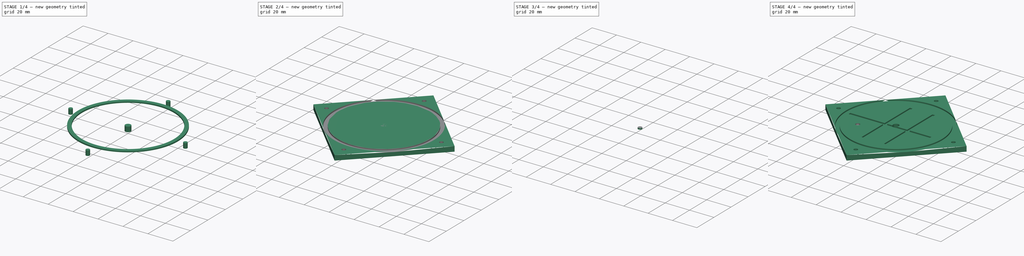
[diagram: build sequence overview — one tinted view per stage of 4, left to right]
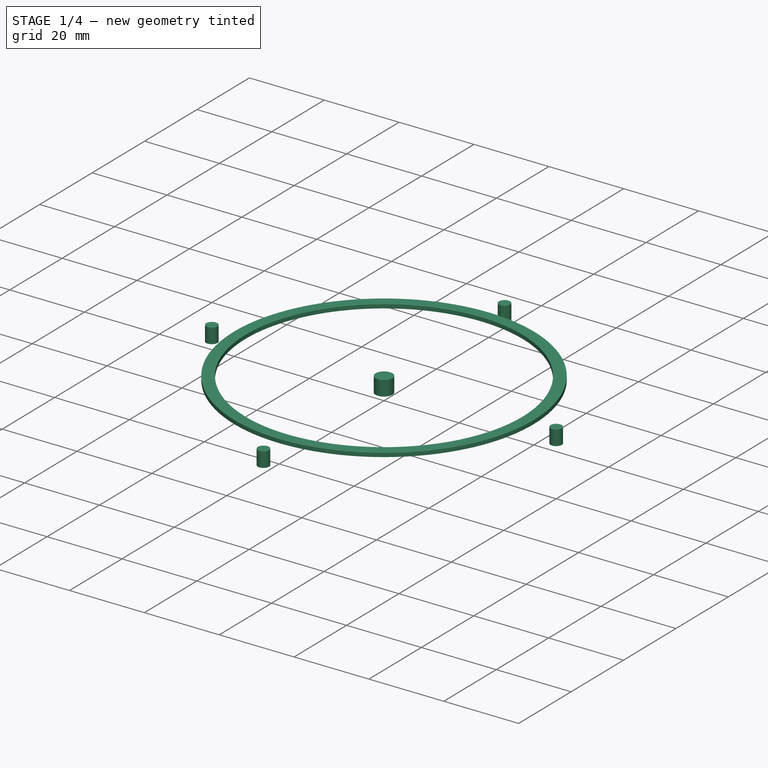
[diagram: stage 1 of 4 — iso view after this stage's code; geometry added in this stage tinted green]
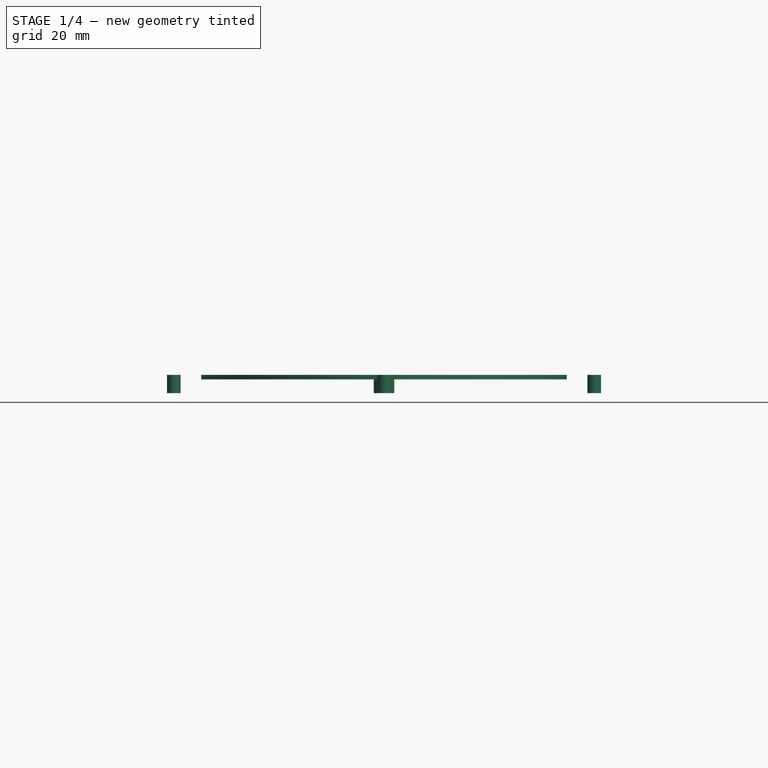
[diagram: stage 1 of 4 — front view after this stage's code; geometry added in this stage tinted green]
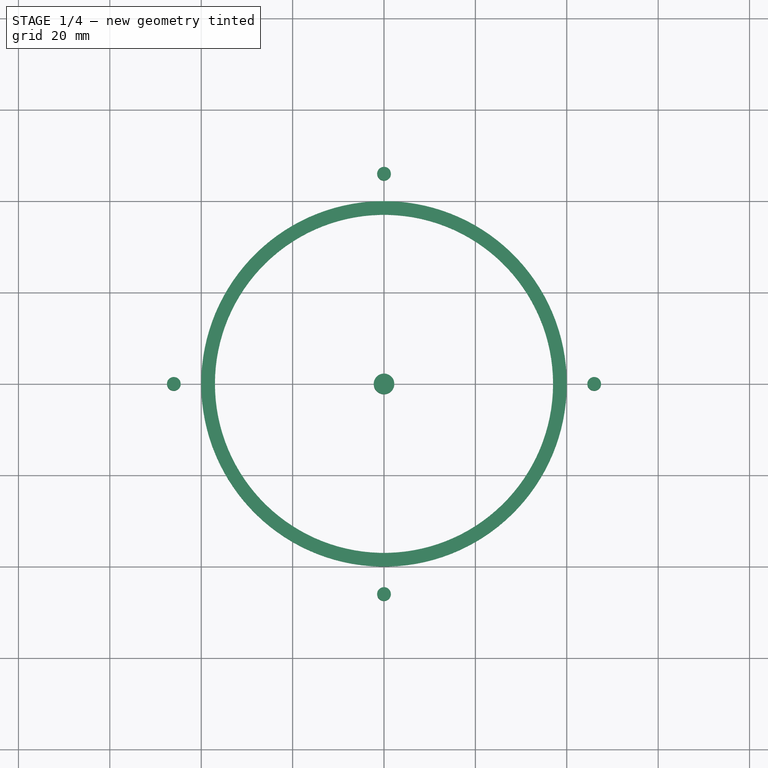
[diagram: stage 1 of 4 — top view after this stage's code; geometry added in this stage tinted green]
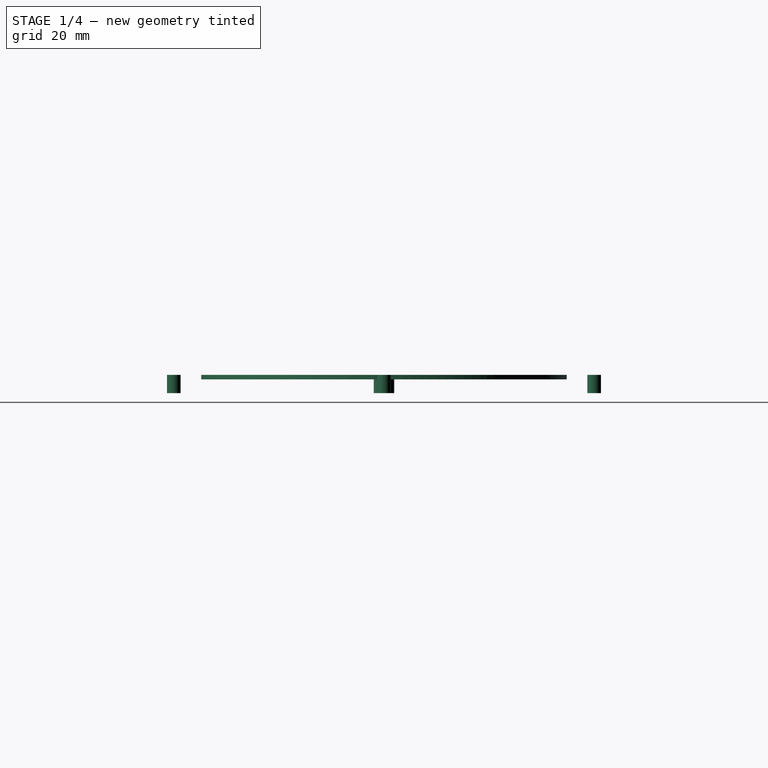
[diagram: stage 1 of 4 — right view after this stage's code; geometry added in this stage tinted green]
FCSTD DOCUMENT  (FreeCAD 0.14R3700 (Git))
Label: BIRR_socle
License: CC-BY 3.0
LicenseURL: http://creativecommons.org/licenses/by/3.0/
objects: Sketcher::SketchObject×6, Part::Extrusion×6, Part::Cut×5, Part::Feature×1
note: 18 computed .brp shape members not serialized (recipe doc carries the construction recipe); baked Part::Feature solids carry a one-line shape summary decoded from their .brp

FEATURE [Sketcher::SketchObject] Sketch001  label="RainureTube"
  Placement = pos=(0,0,4) rot=(0,0,1;0rad)
  sketch-geometry (2):
    g0: Circle CenterX=0 CenterY=0 CenterZ=0 NormalX=0 NormalY=0 NormalZ=1 Radius=40
    g1: Circle CenterX=0 CenterY=0 CenterZ=0 NormalX=0 NormalY=0 NormalZ=1 Radius=37
  constraints (4):
    c: Coincident(g0,g-1)
    c: Radius(g0) = 40
    c: Coincident(g1,g-1)
    c: Radius(g1) = 37
FEATURE [Part::Extrusion] Extrude001
  Base = -> Sketch001
  Dir = (0,0,-1)
  Solid = true
FEATURE [Sketcher::SketchObject] Sketch002  label="TrousFixationTube"
  sketch-geometry (4):
    g0: Circle CenterX=0 CenterY=-46 CenterZ=0 NormalX=0 NormalY=0 NormalZ=1 Radius=1.5
    g1: Circle CenterX=46 CenterY=0 CenterZ=0 NormalX=0 NormalY=0 NormalZ=1 Radius=1.5
    g2: Circle CenterX=0 CenterY=46 CenterZ=0 NormalX=0 NormalY=0 NormalZ=1 Radius=1.5
    g3: Circle CenterX=-46 CenterY=0 CenterZ=0 NormalX=0 NormalY=0 NormalZ=1 Radius=1.5
  constraints (10):
    c: Radius(g0) = 1.5
    c: Radius(g1) = 1.5
    c: Radius(g2) = 1.5
    c: Radius(g3) = 1.5
    c: PointOnObject(g0,g-2)
    c: PointOnObject(g1,g-1)
    c: Symmetric(g3,g1,g-2)
    c: Symmetric(g2,g0,g-1)
    c: DistanceX(g-1,g1) = 46
    c: DistanceY(g-1,g2) = 46
FEATURE [Part::Extrusion] Extrude002
  Base = -> Sketch002
  Dir = (0,0,4)
  Solid = true
FEATURE [Sketcher::SketchObject] Sketch003  label="AxeRotation"
  sketch-geometry (1):
    g0: Circle CenterX=0 CenterY=0 CenterZ=0 NormalX=0 NormalY=0 NormalZ=1 Radius=2.25
  constraints (2):
    c: Coincident(g0,g-1)
    c: Radius(g0) = 2.25
FEATURE [Part::Extrusion] Extrude003
  Base = -> Sketch003
  Dir = (0,0,4)
  Solid = true
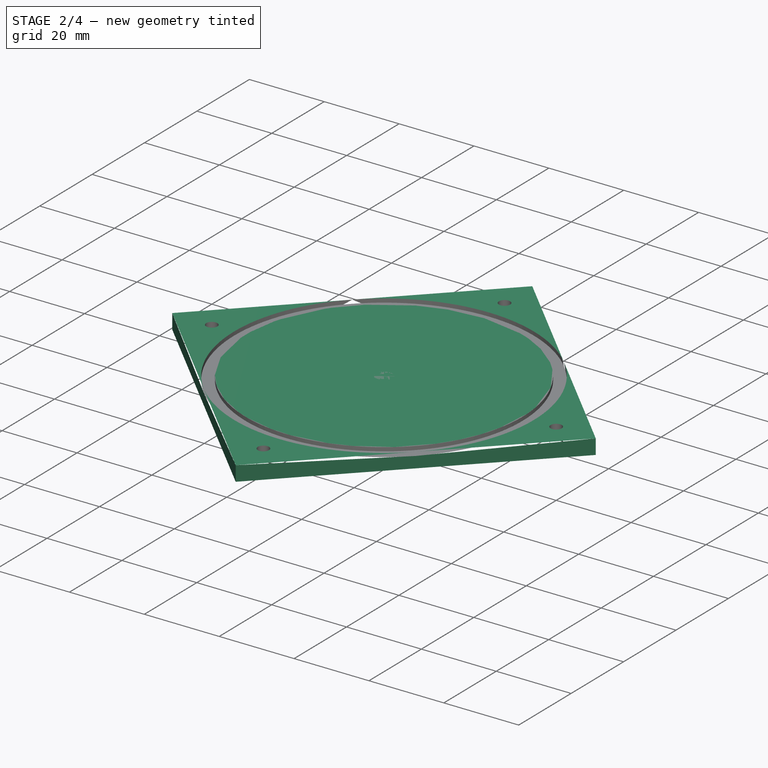
[diagram: stage 2 of 4 — iso view after this stage's code; geometry added in this stage tinted green]
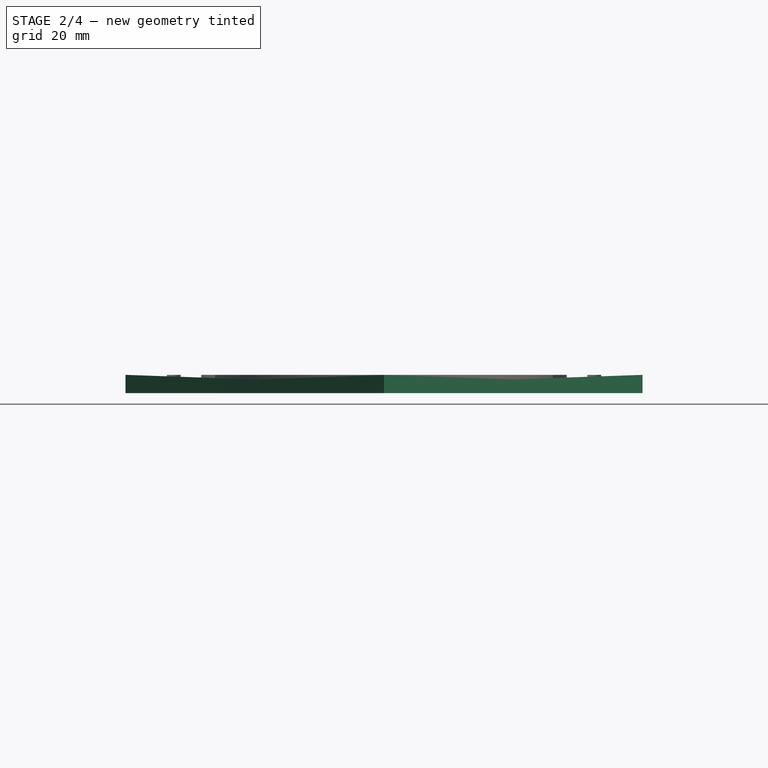
[diagram: stage 2 of 4 — front view after this stage's code; geometry added in this stage tinted green]
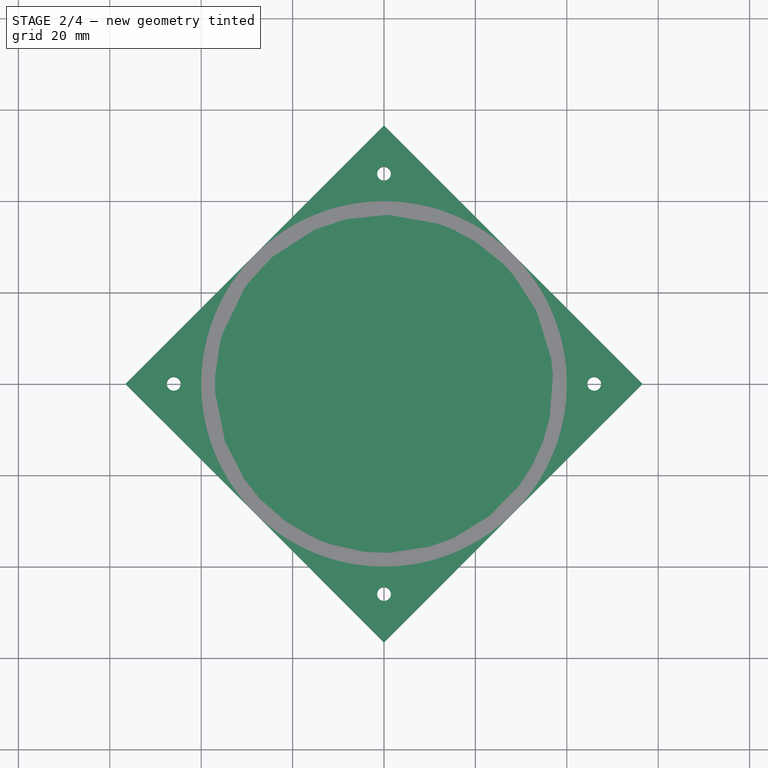
[diagram: stage 2 of 4 — top view after this stage's code; geometry added in this stage tinted green]
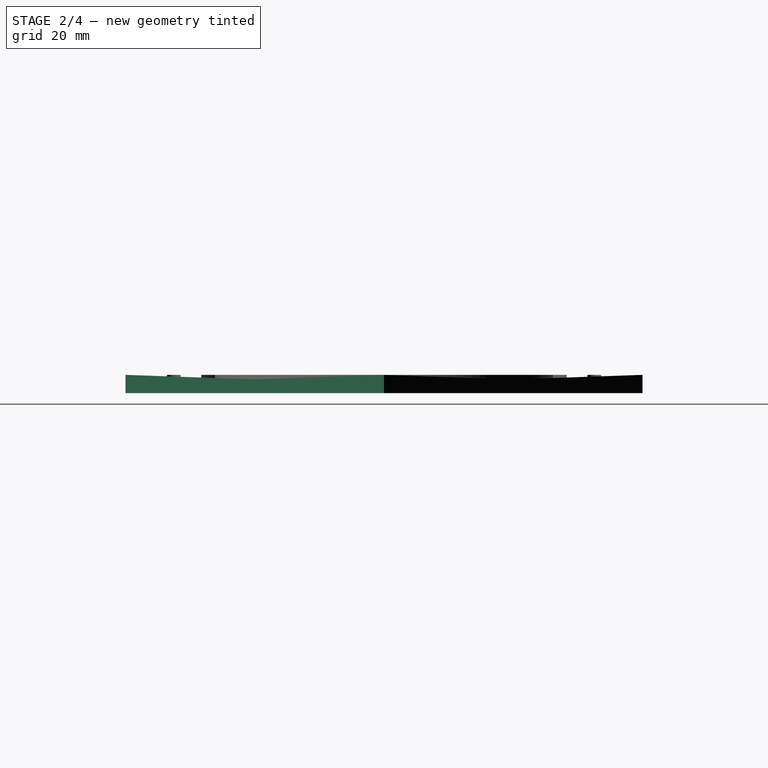
[diagram: stage 2 of 4 — right view after this stage's code; geometry added in this stage tinted green]
FEATURE [Sketcher::SketchObject] Sketch  label="Base"
  sketch-geometry (4):
    g0: LineSegment StartX=-56.5685 StartY=0 StartZ=0 EndX=0 EndY=56.5685 EndZ=0
    g1: LineSegment StartX=0 StartY=56.5685 StartZ=0 EndX=56.5685 EndY=0 EndZ=0
    g2: LineSegment StartX=56.5685 StartY=0 StartZ=0 EndX=0 EndY=-56.5685 EndZ=0
    g3: LineSegment StartX=0 StartY=-56.5685 StartZ=0 EndX=-56.5685 EndY=0 EndZ=0
  constraints (10):
    c: Coincident(g0,g1)
    c: Coincident(g1,g2)
    c: Coincident(g2,g3)
    c: Coincident(g3,g0)
    c: Symmetric(g0,g2,g-1)
    c: PointOnObject(g0,g-2)
    c: Symmetric(g1,g0,g-2)
    c: PointOnObject(g0,g-1)
    c: Distance(g0) = 80
    c: Perpendicular(g0,g3)
FEATURE [Part::Extrusion] Extrude
  Base = -> Sketch
  Dir = (0,0,4)
  Solid = true
FEATURE [Part::Cut] Cut
  Base = -> Extrude
  Tool = -> Extrude001
FEATURE [Part::Cut] Cut001
  Base = -> Cut
  Tool = -> Extrude002
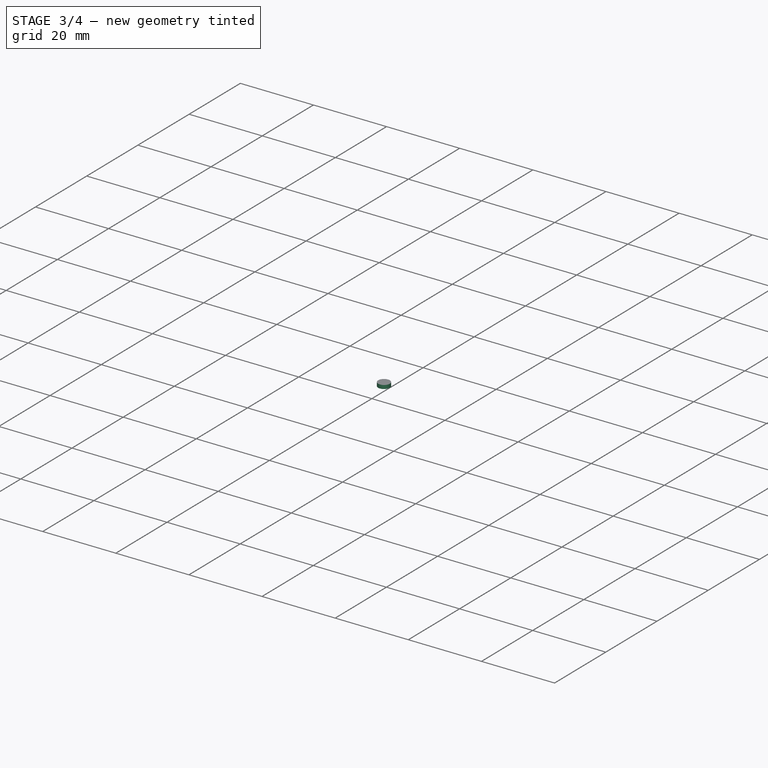
[diagram: stage 3 of 4 — iso view after this stage's code; geometry added in this stage tinted green]
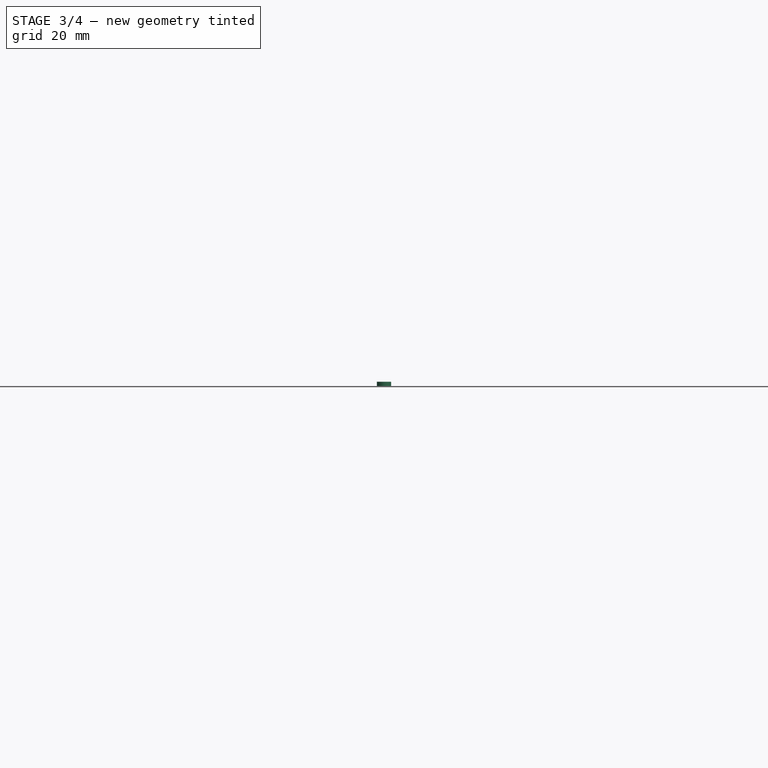
[diagram: stage 3 of 4 — front view after this stage's code; geometry added in this stage tinted green]
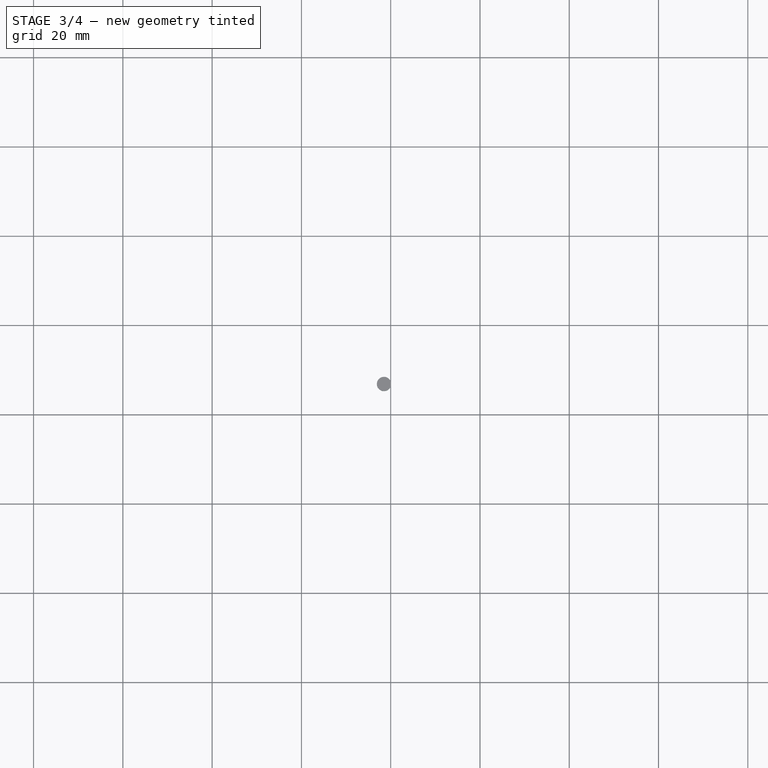
[diagram: stage 3 of 4 — top view after this stage's code; geometry added in this stage tinted green]
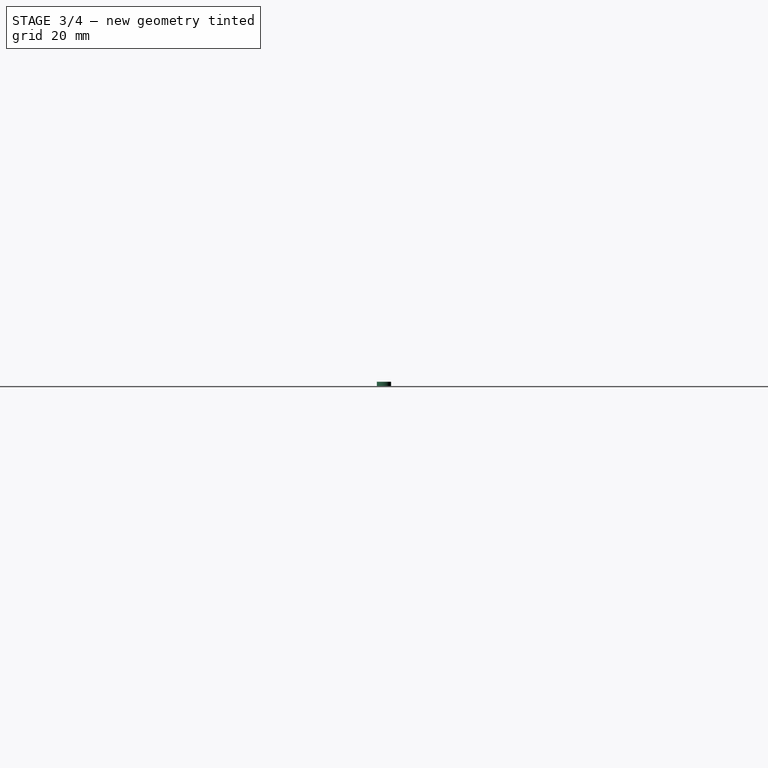
[diagram: stage 3 of 4 — right view after this stage's code; geometry added in this stage tinted green]
FEATURE [Part::Cut] Cut002
  Base = -> Cut001
  Tool = -> Extrude003
FEATURE [Sketcher::SketchObject] Sketch005  label="trouAxeEntrainement"
  Placement = pos=(0,0,4) rot=(0,0,1;0rad)
  Support = -> Cut002 [Face18]
  sketch-geometry (1):
    g0: Circle CenterX=-21.5 CenterY=-13.1 CenterZ=0 NormalX=0 NormalY=0 NormalZ=1 Radius=1.6
  constraints (3):
    c: Radius(g0) = 1.6
    c: DistanceX(g-1,g0) = -21.5
    c: DistanceY(g-1,g0) = -13.1
FEATURE [Part::Extrusion] Extrude005
  Base = -> Sketch005
  Dir = (0,0,-1)
  Solid = true
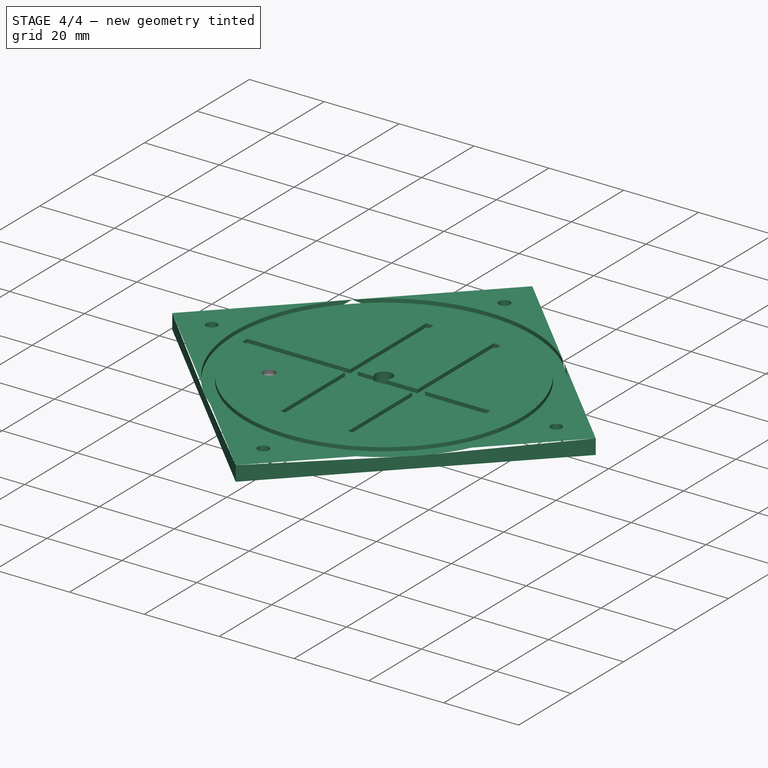
[diagram: stage 4 of 4 — iso view after this stage's code; geometry added in this stage tinted green]
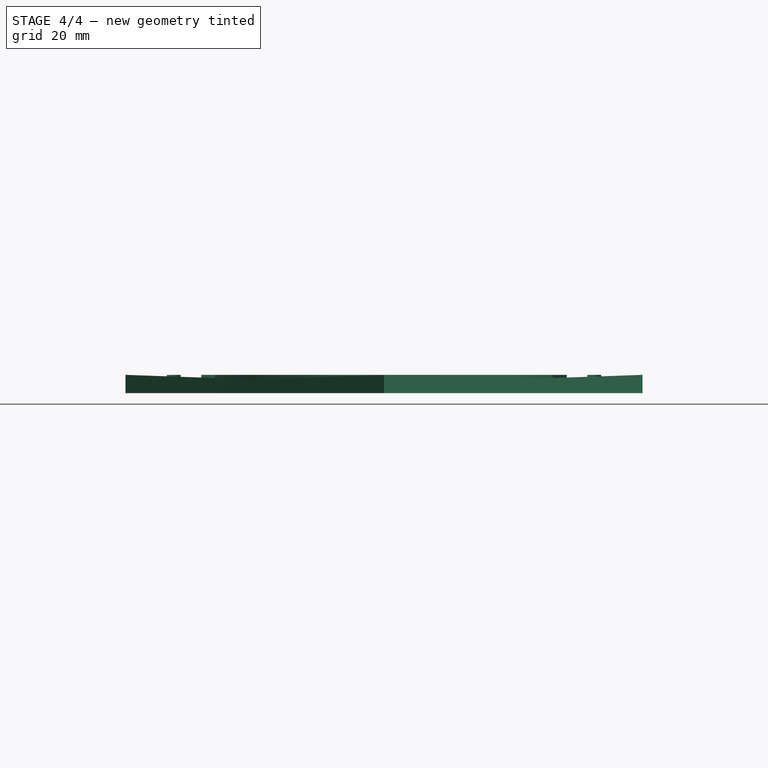
[diagram: stage 4 of 4 — front view after this stage's code; geometry added in this stage tinted green]
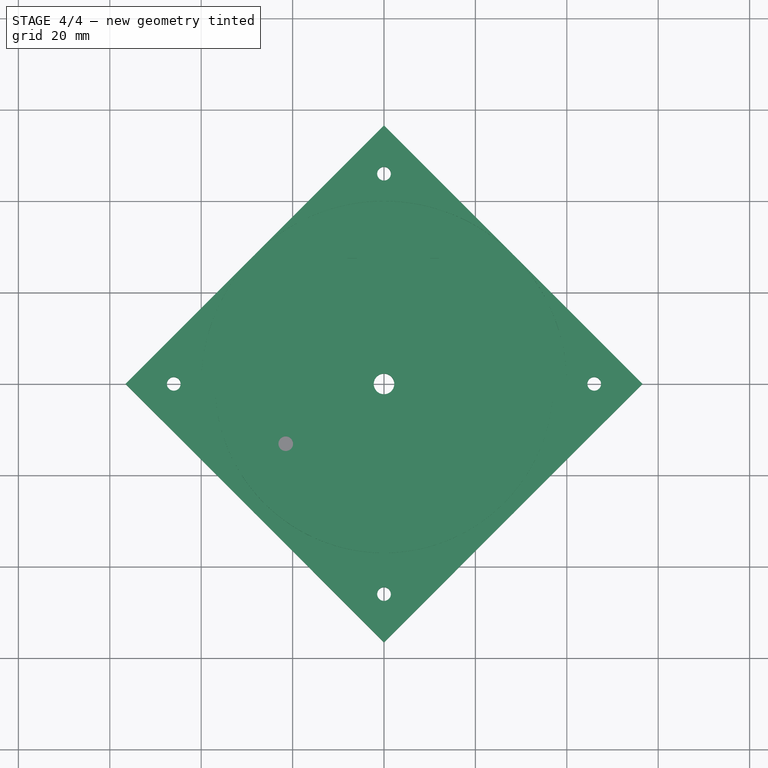
[diagram: stage 4 of 4 — top view after this stage's code; geometry added in this stage tinted green]
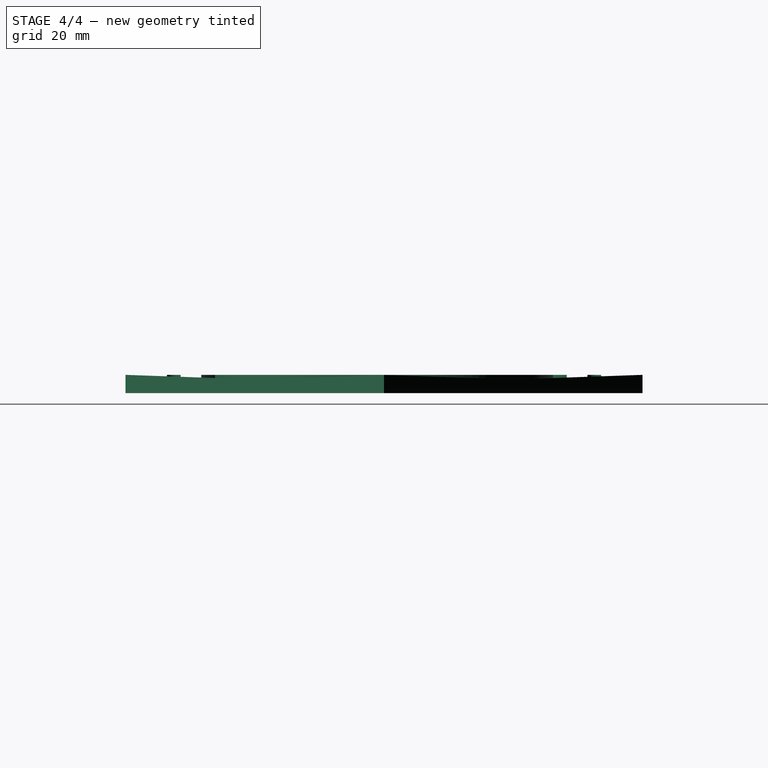
[diagram: stage 4 of 4 — right view after this stage's code; geometry added in this stage tinted green]
FEATURE [Sketcher::SketchObject] Sketch004  label="rainureFixMoteur"
  Placement = pos=(0,0,4) rot=(0,0,1;0rad)
  sketch-geometry (25):
    g0: GeomPoint [constr] X=-8 Y=-28 Z=0
    g1: GeomPoint [constr] X=-35.5 Y=-3.5 Z=0
    g2: GeomPoint [constr] X=12 Y=-28 Z=0
    g3: LineSegment StartX=12 StartY=-28 StartZ=0 EndX=10 EndY=-28 EndZ=0
    g4: LineSegment StartX=10 StartY=-28 StartZ=0 EndX=10 EndY=-3.5 EndZ=0
    g5: LineSegment StartX=10 StartY=-3.5 StartZ=0 EndX=-6 EndY=-3.5 EndZ=0
    g6: LineSegment StartX=-6 StartY=-3.5 StartZ=0 EndX=-6 EndY=-28 EndZ=0
    g7: LineSegment StartX=-6 StartY=-28 StartZ=0 EndX=-8 EndY=-28 EndZ=0
    g8: LineSegment StartX=-8 StartY=-28 StartZ=0 EndX=-8 EndY=-3.5 EndZ=0
    g9: LineSegment StartX=-8 StartY=-3.5 StartZ=0 EndX=-35.5 EndY=-3.5 EndZ=0
    g10: LineSegment StartX=-35.5 StartY=-3.5 StartZ=0 EndX=-35.5 EndY=-1.5 EndZ=0
    g11: LineSegment StartX=-35.5 StartY=-1.5 StartZ=0 EndX=-8 EndY=-1.5 EndZ=0
    g12: LineSegment StartX=-8 StartY=-1.5 StartZ=0 EndX=-8 EndY=27.5 EndZ=0
    g13: LineSegment StartX=-8 StartY=27.5 StartZ=0 EndX=-6 EndY=27.5 EndZ=0
    g14: LineSegment StartX=-6 StartY=27.5 StartZ=0 EndX=-6 EndY=-1.5 EndZ=0
    g15: LineSegment StartX=-6 StartY=-1.5 StartZ=0 EndX=10 EndY=-1.5 EndZ=0
    g16: LineSegment StartX=10 StartY=-1.5 StartZ=0 EndX=10 EndY=27.5 EndZ=0
    g17: LineSegment StartX=10 StartY=27.5 StartZ=0 EndX=12 EndY=27.5 EndZ=0
    g18: LineSegment StartX=12 StartY=27.5 StartZ=0 EndX=12 EndY=-1.5 EndZ=0
    g19: LineSegment StartX=12 StartY=-1.5 StartZ=0 EndX=29.5 EndY=-1.5 EndZ=0
    g20: LineSegment StartX=29.5 StartY=-1.5 StartZ=0 EndX=29.5 EndY=-3.5 EndZ=0
    g21: LineSegment StartX=29.5 StartY=-3.5 StartZ=0 EndX=12 EndY=-3.5 EndZ=0
    g22: LineSegment StartX=12 StartY=-3.5 StartZ=0 EndX=12 EndY=-28 EndZ=0
    g23: GeomPoint [constr] X=12 Y=-0.25 Z=0
    g24: GeomPoint [constr] X=-6 Y=-0.25 Z=0
  constraints (65):
    c: Coincident(g3,g2)
    c: Coincident(g4,g3)
    c: Coincident(g5,g4)
    c: Coincident(g6,g5)
    c: Coincident(g7,g6)
    c: Coincident(g7,g0)
    c: Coincident(g8,g0)
    c: Coincident(g9,g8)
    c: Coincident(g9,g1)
    c: Coincident(g10,g1)
    c: Coincident(g11,g10)
    c: Coincident(g12,g11)
    c: Coincident(g13,g12)
    c: Coincident(g14,g13)
    c: Coincident(g15,g14)
    c: Coincident(g16,g15)
    c: Coincident(g17,g16)
    c: Coincident(g18,g17)
    c: Coincident(g19,g18)
    c: Coincident(g20,g19)
    c: Coincident(g21,g20)
    c: Coincident(g22,g21)
    c: Coincident(g22,g2)
    c: Vertical(g6)
    c: Horizontal(g7)
    c: Vertical(g8)
    c: Horizontal(g9)
    c: Vertical(g10)
    c: Horizontal(g11)
    c: Vertical(g12)
    c: Horizontal(g13)
    c: Vertical(g14)
    c: DistanceY(g10) = 2
    c: DistanceX(g7) = -2
    c: PointOnObject(g5,g9)
    c: PointOnObject(g11,g8)
    c: PointOnObject(g14,g6)
    c: PointOnObject(g14,g11)
    c: Horizontal(g15)
    c: Horizontal(g5)
    c: Vertical(g4)
    c: Horizontal(g3)
    c: Vertical(g22)
    c: DistanceX(g3) = -2
    c: Vertical(g16)
    c: Horizontal(g17)
    c: PointOnObject(g15,g4)
    c: Horizontal(g21)
    c: Vertical(g18)
    c: PointOnObject(g18,g22)
    c: PointOnObject(g18,g11)
    c: PointOnObject(g21,g9)
    c: Horizontal(g19)
    c: Vertical(g20)
    c: DistanceY(g6,g13) = 55.5
    c: DistanceY(g16,g3) = -55.5
    c: DistanceX(g10,g19) = 65
    c: DistanceY(g-1,g23) = -0.25
    c: Symmetric(g2,g17,g23)
    c: DistanceX(g-1,g24) = -6
    c: DistanceY(g-1,g24) = -0.25
    c: Symmetric(g6,g13,g24)
    c: DistanceX(g12,g17) = 20
    c: DistanceY(g16) = 29
    c: DistanceX(g19) = 17.5
FEATURE [Part::Extrusion] Extrude004
  Base = -> Sketch004
  Dir = (0,0,-1)
  Solid = true
FEATURE [Part::Cut] Cut003
  Base = -> Cut002
  Tool = -> Extrude004
FEATURE [Part::Cut] Cut004
  Base = -> Cut003
  Tool = -> Extrude005
FEATURE [Part::Feature] Cut004001  label="socle_copy"
  shape: bbox 113.1 x 113.1 x 4 mm, 46 faces (baked)
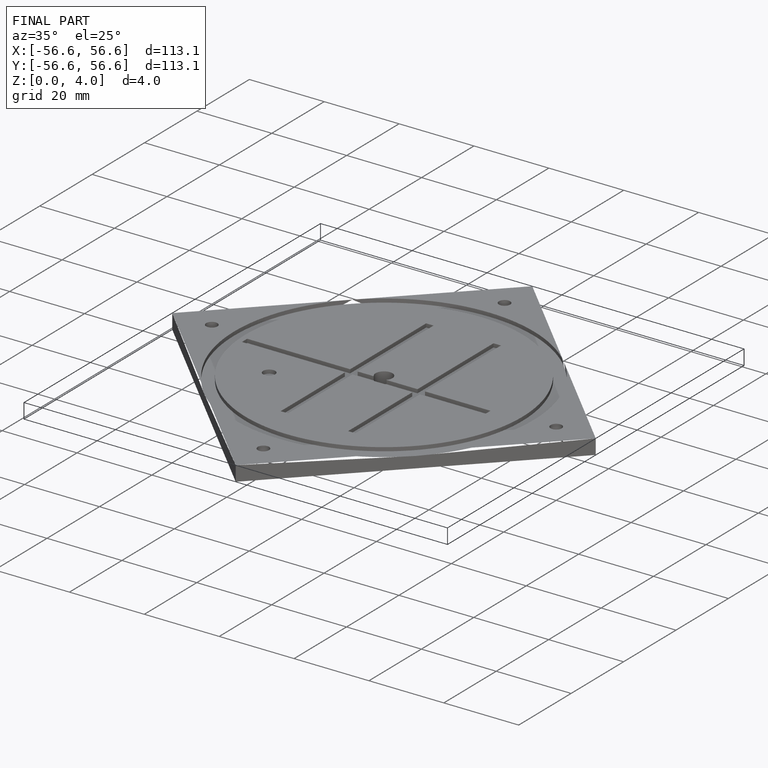
[diagram: finished part — iso view with bounding-box wireframe]
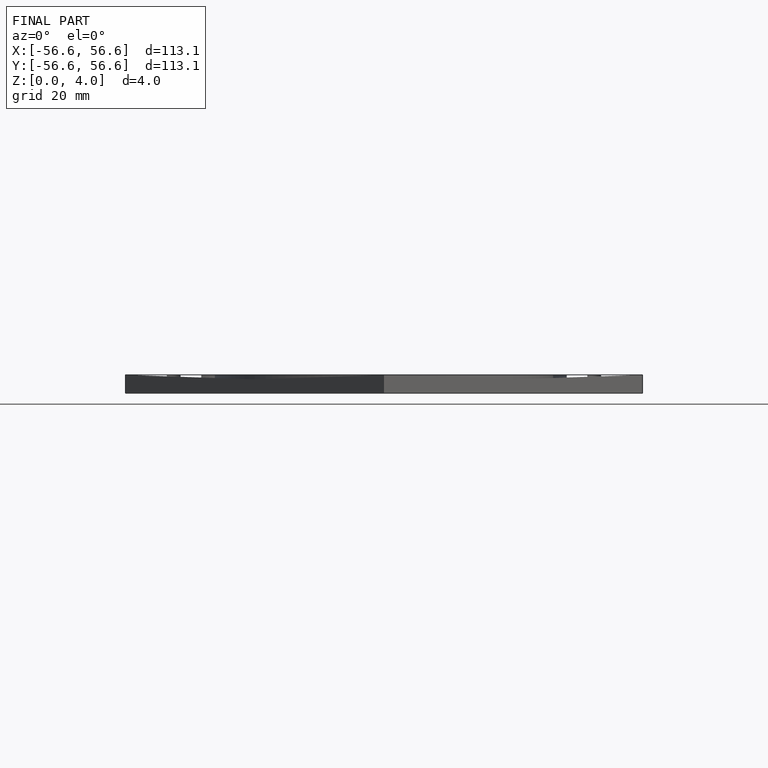
[diagram: finished part — front view with bounding-box wireframe]
